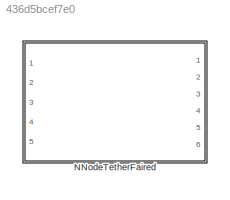
MODEL slx_436d5bcef7e0
KIND library
CONFIG AbsTol = auto
CONFIG EnableMultiTasking = off
CONFIG FixedStep = auto
CONFIG MaxStep = auto
CONFIG MinStep = auto
CONFIG RelTol = 1e-3
CONFIG SampleTimeConstraint = Unconstrained
CONFIG Solver = VariableStepAuto
CONFIG SolverName = VariableStepAuto
CONFIG StartTime = 0.0
CONFIG StopTime = 10.0
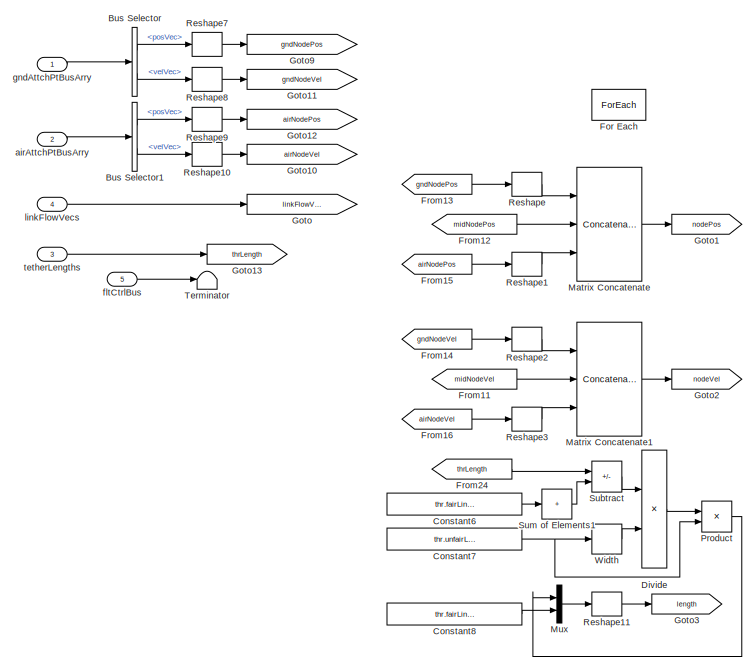
[diagram: NNodeTetherFaired - part 1/2, left side, full height]
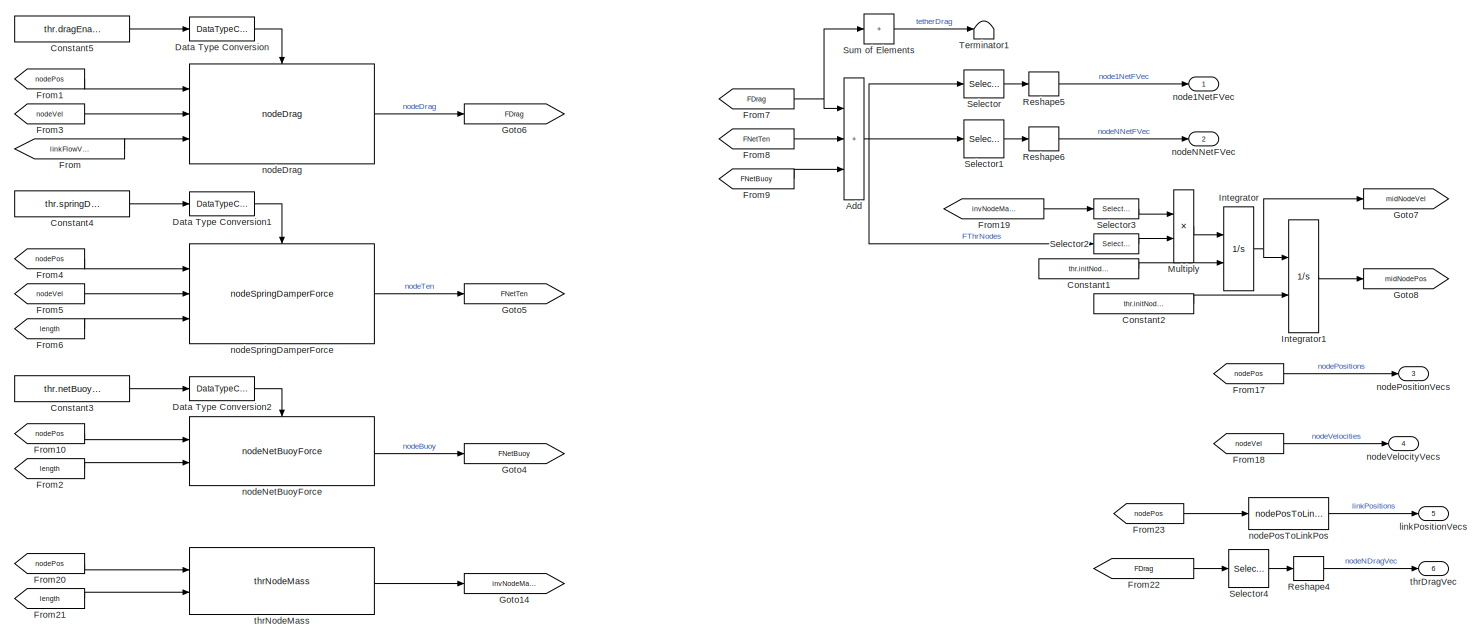
[diagram: NNodeTetherFaired - part 2/2, right side, full height]
BLOCK [SubSystem] NNodeTetherFaired
  Ports = [5, 6]
  RequestExecContextInheritance = off
  VariantControl = NNodeTether
BLOCK [Sum] NNodeTetherFaired/Add
  IconShape = rectangular
  Inputs = 3
  Ports = [3, 1]
BLOCK [BusSelector] NNodeTetherFaired/Bus Selector
  OutputSignals = posVec,velVec
  Ports = [1, 2]
BLOCK [BusSelector] NNodeTetherFaired/Bus Selector1
  OutputSignals = posVec,velVec
  Ports = [1, 2]
BLOCK [Constant] NNodeTetherFaired/Constant1
  Value = thr.initNodeVel
BLOCK [Constant] NNodeTetherFaired/Constant2
  Value = thr.initNodePos
BLOCK [Constant] NNodeTetherFaired/Constant3
  Value = thr.netBuoyEnable
BLOCK [Constant] NNodeTetherFaired/Constant4
  Value = thr.springDamperEnable
BLOCK [Constant] NNodeTetherFaired/Constant5
  Value = thr.dragEnable
BLOCK [Constant] NNodeTetherFaired/Constant6
  Value = thr.fairLinkLength
BLOCK [Constant] NNodeTetherFaired/Constant7
  Value = thr.unfairLinkLength
BLOCK [Constant] NNodeTetherFaired/Constant8
  Value = thr.fairLinkLength
BLOCK [DataTypeConversion] NNodeTetherFaired/Data Type Conversion
  OutDataTypeStr = boolean
  RndMeth = Floor
  SaturateOnIntegerOverflow = off
BLOCK [DataTypeConversion] NNodeTetherFaired/Data Type Conversion1
  OutDataTypeStr = boolean
  RndMeth = Floor
  SaturateOnIntegerOverflow = off
BLOCK [DataTypeConversion] NNodeTetherFaired/Data Type Conversion2
  OutDataTypeStr = boolean
  RndMeth = Floor
  SaturateOnIntegerOverflow = off
BLOCK [Product] NNodeTetherFaired/Divide
  Inputs = */
  Ports = [2, 1]
BLOCK [ForEach] NNodeTetherFaired/For Each
  DisableCoverage = on
  IterateSubsysMaskParameter = on,off,off
  Ports = []
  SubsysMaskParameterIterationDimension = 2,1,1
BLOCK [From] NNodeTetherFaired/From
  GotoTag = linkFlowVelVecs
BLOCK [From] NNodeTetherFaired/From1
  GotoTag = nodePos
BLOCK [From] NNodeTetherFaired/From10
  GotoTag = nodePos
BLOCK [From] NNodeTetherFaired/From11
  GotoTag = midNodeVel
BLOCK [From] NNodeTetherFaired/From12
  GotoTag = midNodePos
BLOCK [From] NNodeTetherFaired/From13
  GotoTag = gndNodePos
BLOCK [From] NNodeTetherFaired/From14
  GotoTag = gndNodeVel
BLOCK [From] NNodeTetherFaired/From15
  GotoTag = airNodePos
BLOCK [From] NNodeTetherFaired/From16
  GotoTag = airNodeVel
BLOCK [From] NNodeTetherFaired/From17
  GotoTag = nodePos
BLOCK [From] NNodeTetherFaired/From18
  GotoTag = nodeVel
BLOCK [From] NNodeTetherFaired/From19
  GotoTag = invNodeMasses
BLOCK [From] NNodeTetherFaired/From2
  GotoTag = length
BLOCK [From] NNodeTetherFaired/From20
  GotoTag = nodePos
BLOCK [From] NNodeTetherFaired/From21
  GotoTag = length
BLOCK [From] NNodeTetherFaired/From22
  GotoTag = FDrag
BLOCK [From] NNodeTetherFaired/From23
  GotoTag = nodePos
BLOCK [From] NNodeTetherFaired/From24
  GotoTag = thrLength
BLOCK [From] NNodeTetherFaired/From3
  GotoTag = nodeVel
BLOCK [From] NNodeTetherFaired/From4
  GotoTag = nodePos
BLOCK [From] NNodeTetherFaired/From5
  GotoTag = nodeVel
BLOCK [From] NNodeTetherFaired/From6
  GotoTag = length
BLOCK [From] NNodeTetherFaired/From7
  GotoTag = FDrag
BLOCK [From] NNodeTetherFaired/From8
  GotoTag = FNetTen
BLOCK [From] NNodeTetherFaired/From9
  GotoTag = FNetBuoy
BLOCK [Goto] NNodeTetherFaired/Goto
  GotoTag = linkFlowVelVecs
BLOCK [Goto] NNodeTetherFaired/Goto1
  GotoTag = nodePos
BLOCK [Goto] NNodeTetherFaired/Goto10
  GotoTag = airNodeVel
BLOCK [Goto] NNodeTetherFaired/Goto11
  GotoTag = gndNodeVel
BLOCK [Goto] NNodeTetherFaired/Goto12
  GotoTag = airNodePos
BLOCK [Goto] NNodeTetherFaired/Goto13
  GotoTag = thrLength
BLOCK [Goto] NNodeTetherFaired/Goto14
  GotoTag = invNodeMasses
BLOCK [Goto] NNodeTetherFaired/Goto2
  GotoTag = nodeVel
BLOCK [Goto] NNodeTetherFaired/Goto3
  GotoTag = length
BLOCK [Goto] NNodeTetherFaired/Goto4
  GotoTag = FNetBuoy
BLOCK [Goto] NNodeTetherFaired/Goto5
  GotoTag = FNetTen
BLOCK [Goto] NNodeTetherFaired/Goto6
  GotoTag = FDrag
BLOCK [Goto] NNodeTetherFaired/Goto7
  GotoTag = midNodeVel
BLOCK [Goto] NNodeTetherFaired/Goto8
  GotoTag = midNodePos
BLOCK [Goto] NNodeTetherFaired/Goto9
  GotoTag = gndNodePos
BLOCK [Integrator] NNodeTetherFaired/Integrator
  InitialConditionSource = external
  Ports = [2, 1]
BLOCK [Integrator] NNodeTetherFaired/Integrator1
  InitialConditionSource = external
  Ports = [2, 1]
BLOCK [Concatenate] NNodeTetherFaired/Matrix Concatenate
  ConcatenateDimension = 2
  Mode = Multidimensional array
  NumInputs = 3
  Ports = [3, 1]
BLOCK [Concatenate] NNodeTetherFaired/Matrix Concatenate1
  ConcatenateDimension = 2
  Mode = Multidimensional array
  NumInputs = 3
  Ports = [3, 1]
BLOCK [Product] NNodeTetherFaired/Multiply
  Ports = [2, 1]
BLOCK [Mux] NNodeTetherFaired/Mux
  DisplayOption = bar
  Inputs = 2
  Ports = [2, 1]
BLOCK [Product] NNodeTetherFaired/Product
  Ports = [2, 1]
BLOCK [Reshape] NNodeTetherFaired/Reshape
  OutputDimensionality = Column vector (2-D)
  Ports = [1, 1]
BLOCK [Reshape] NNodeTetherFaired/Reshape1
  OutputDimensionality = Column vector (2-D)
  Ports = [1, 1]
BLOCK [Reshape] NNodeTetherFaired/Reshape10
  OutputDimensionality = Column vector (2-D)
  Ports = [1, 1]
BLOCK [Reshape] NNodeTetherFaired/Reshape11
  OutputDimensionality = Row vector (2-D)
  Ports = [1, 1]
BLOCK [Reshape] NNodeTetherFaired/Reshape2
  OutputDimensionality = Column vector (2-D)
  Ports = [1, 1]
BLOCK [Reshape] NNodeTetherFaired/Reshape3
  OutputDimensionality = Column vector (2-D)
  Ports = [1, 1]
BLOCK [Reshape] NNodeTetherFaired/Reshape4
  OutputDimensionality = Column vector (2-D)
  Ports = [1, 1]
BLOCK [Reshape] NNodeTetherFaired/Reshape5
  OutputDimensionality = Column vector (2-D)
  Ports = [1, 1]
BLOCK [Reshape] NNodeTetherFaired/Reshape6
  OutputDimensionality = Column vector (2-D)
  Ports = [1, 1]
BLOCK [Reshape] NNodeTetherFaired/Reshape7
  OutputDimensionality = Column vector (2-D)
  Ports = [1, 1]
BLOCK [Reshape] NNodeTetherFaired/Reshape8
  OutputDimensionality = Column vector (2-D)
  Ports = [1, 1]
BLOCK [Reshape] NNodeTetherFaired/Reshape9
  OutputDimensionality = Column vector (2-D)
  Ports = [1, 1]
BLOCK [Selector] NNodeTetherFaired/Selector
  IndexOptions = Select all,Index vector (dialog)
  Indices = [1 3],1
  InputPortWidth = 3
  NumberOfDimensions = 2
  OutputSizes = 1,1
  Ports = [1, 1]
BLOCK [Selector] NNodeTetherFaired/Selector1
  IndexOptions = Select all,Starting index (dialog)
  Indices = [1 3],numNodes
  InputPortWidth = 3
  NumberOfDimensions = 2
  OutputSizes = 1,1
  Ports = [1, 1]
BLOCK [Selector] NNodeTetherFaired/Selector2
  IndexOptions = Select all,Index vector (dialog)
  Indices = [1 3],2:numNodes-1
  InputPortWidth = 3
  NumberOfDimensions = 2
  OutputSizes = 1,1
  Ports = [1, 1]
BLOCK [Selector] NNodeTetherFaired/Selector3
  IndexOptions = Select all,Index vector (dialog)
  Indices = [1 3],2:numNodes-1
  InputPortWidth = 3
  NumberOfDimensions = 2
  OutputSizes = 1,1
  Ports = [1, 1]
BLOCK [Selector] NNodeTetherFaired/Selector4
  IndexOptions = Select all,Starting index (dialog)
  Indices = [1 3],numNodes
  InputPortWidth = 3
  NumberOfDimensions = 2
  OutputSizes = 1,1
  Ports = [1, 1]
BLOCK [Sum] NNodeTetherFaired/Subtract
  IconShape = rectangular
  Inputs = +-
  Ports = [2, 1]
BLOCK [Sum] NNodeTetherFaired/Sum of Elements
  CollapseDim = 2
  CollapseMode = Specified dimension
  IconShape = rectangular
  Inputs = +
  Ports = [1, 1]
BLOCK [Sum] NNodeTetherFaired/Sum of Elements1
  IconShape = rectangular
  Inputs = +
  Ports = [1, 1]
BLOCK [Terminator] NNodeTetherFaired/Terminator
BLOCK [Terminator] NNodeTetherFaired/Terminator1
BLOCK [Width] NNodeTetherFaired/Width
BLOCK [Inport] NNodeTetherFaired/airAttchPtBusArry
  OutDataTypeStr = Bus: thrAttachPtKinematicsBus
  Partition = on
  PartitionDimension = 1
  PartitionOffset = 0
  PartitionWidth = 1
  Port = 2
BLOCK [Inport] NNodeTetherFaired/fltCtrlBus
  Port = 5
BLOCK [Inport] NNodeTetherFaired/gndAttchPtBusArry
  OutDataTypeStr = Bus: thrAttachPtKinematicsBus
  Partition = on
  PartitionDimension = 1
  PartitionOffset = 0
  PartitionWidth = 1
BLOCK [Inport] NNodeTetherFaired/linkFlowVecs
  Partition = on
  PartitionDimension = 3
  PartitionOffset = 0
  PartitionWidth = 1
  Port = 4
BLOCK [Outport] NNodeTetherFaired/linkPositionVecs
  ConcatenationDimension = 3
  Port = 5
  VectorParamsAs1DForOutWhenUnconnected = off
BLOCK [Outport] NNodeTetherFaired/node1NetFVec
  ConcatenationDimension = 3
  VectorParamsAs1DForOutWhenUnconnected = off
BLOCK [Reference] NNodeTetherFaired/nodeDrag  REF=nodeDragForce_ul/nodeDrag
  Ports = [3, 1, 1]
  SourceBlock = nodeDragForce_ul/nodeDrag
BLOCK [Outport] NNodeTetherFaired/nodeNNetFVec
  ConcatenationDimension = 3
  Port = 2
  VectorParamsAs1DForOutWhenUnconnected = off
BLOCK [Reference] NNodeTetherFaired/nodeNetBuoyForce  REF=nodeNetBuoyForce_ul/nodeNetBuoyForce
  Ports = [2, 1, 1]
  SourceBlock = nodeNetBuoyForce_ul/nodeNetBuoyForce
BLOCK [Reference] NNodeTetherFaired/nodePosToLinkPos  REF=nodePosToLinkPos_ul/nodePosToLinkPos
  Ports = [1, 1]
  SourceBlock = nodePosToLinkPos_ul/nodePosToLinkPos
  SourceType = SubSystem
BLOCK [Outport] NNodeTetherFaired/nodePositionVecs
  ConcatenationDimension = 3
  Port = 3
  VectorParamsAs1DForOutWhenUnconnected = off
BLOCK [Reference] NNodeTetherFaired/nodeSpringDamperForce  REF=nodeSpringDamperForce_ul/nodeSpringDamperForce
  Ports = [3, 1, 1]
  SourceBlock = nodeSpringDamperForce_ul/nodeSpringDamperForce
BLOCK [Outport] NNodeTetherFaired/nodeVelocityVecs
  ConcatenationDimension = 3
  Port = 4
  VectorParamsAs1DForOutWhenUnconnected = off
BLOCK [Inport] NNodeTetherFaired/tetherLengths
  Partition = on
  PartitionDimension = 1
  PartitionOffset = 0
  PartitionWidth = 1
  Port = 3
BLOCK [Outport] NNodeTetherFaired/thrDragVec
  ConcatenationDimension = 3
  Port = 6
  VectorParamsAs1DForOutWhenUnconnected = off
BLOCK [Reference] NNodeTetherFaired/thrNodeMass  REF=thrNodeMass_ul/thrNodeMass
  Ports = [2, 1]
  SourceBlock = thrNodeMass_ul/thrNodeMass
NET NNodeTetherFaired/Add:1 -> NNodeTetherFaired/Selector1:1, NNodeTetherFaired/Selector2:1, NNodeTetherFaired/Selector:1
LINE NNodeTetherFaired/Bus Selector1:1 -> NNodeTetherFaired/Reshape9:1
LINE NNodeTetherFaired/Bus Selector1:2 -> NNodeTetherFaired/Reshape10:1
LINE NNodeTetherFaired/Bus Selector:1 -> NNodeTetherFaired/Reshape7:1
LINE NNodeTetherFaired/Bus Selector:2 -> NNodeTetherFaired/Reshape8:1
LINE NNodeTetherFaired/Constant1:1 -> NNodeTetherFaired/Integrator:2
LINE NNodeTetherFaired/Constant2:1 -> NNodeTetherFaired/Integrator1:2
LINE NNodeTetherFaired/Constant3:1 -> NNodeTetherFaired/Data Type Conversion2:1
LINE NNodeTetherFaired/Constant4:1 -> NNodeTetherFaired/Data Type Conversion1:1
LINE NNodeTetherFaired/Constant5:1 -> NNodeTetherFaired/Data Type Conversion:1
LINE NNodeTetherFaired/Constant6:1 -> NNodeTetherFaired/Sum of Elements1:1
NET NNodeTetherFaired/Constant7:1 -> NNodeTetherFaired/Product:2, NNodeTetherFaired/Width:1
LINE NNodeTetherFaired/Constant8:1 -> NNodeTetherFaired/Mux:2
LINE NNodeTetherFaired/Data Type Conversion1:1 -> NNodeTetherFaired/nodeSpringDamperForce:enable
LINE NNodeTetherFaired/Data Type Conversion2:1 -> NNodeTetherFaired/nodeNetBuoyForce:enable
LINE NNodeTetherFaired/Data Type Conversion:1 -> NNodeTetherFaired/nodeDrag:enable
LINE NNodeTetherFaired/Divide:1 -> NNodeTetherFaired/Product:1
LINE NNodeTetherFaired/From10:1 -> NNodeTetherFaired/nodeNetBuoyForce:1
LINE NNodeTetherFaired/From11:1 -> NNodeTetherFaired/Matrix Concatenate1:2
LINE NNodeTetherFaired/From12:1 -> NNodeTetherFaired/Matrix Concatenate:2
LINE NNodeTetherFaired/From13:1 -> NNodeTetherFaired/Reshape:1
LINE NNodeTetherFaired/From14:1 -> NNodeTetherFaired/Reshape2:1
LINE NNodeTetherFaired/From15:1 -> NNodeTetherFaired/Reshape1:1
LINE NNodeTetherFaired/From16:1 -> NNodeTetherFaired/Reshape3:1
LINE NNodeTetherFaired/From17:1 -> NNodeTetherFaired/nodePositionVecs:1
LINE NNodeTetherFaired/From18:1 -> NNodeTetherFaired/nodeVelocityVecs:1
LINE NNodeTetherFaired/From19:1 -> NNodeTetherFaired/Selector3:1
LINE NNodeTetherFaired/From1:1 -> NNodeTetherFaired/nodeDrag:1
LINE NNodeTetherFaired/From20:1 -> NNodeTetherFaired/thrNodeMass:1
LINE NNodeTetherFaired/From21:1 -> NNodeTetherFaired/thrNodeMass:2
LINE NNodeTetherFaired/From22:1 -> NNodeTetherFaired/Selector4:1
LINE NNodeTetherFaired/From23:1 -> NNodeTetherFaired/nodePosToLinkPos:1
LINE NNodeTetherFaired/From24:1 -> NNodeTetherFaired/Subtract:1
LINE NNodeTetherFaired/From2:1 -> NNodeTetherFaired/nodeNetBuoyForce:2
LINE NNodeTetherFaired/From3:1 -> NNodeTetherFaired/nodeDrag:2
LINE NNodeTetherFaired/From4:1 -> NNodeTetherFaired/nodeSpringDamperForce:1
LINE NNodeTetherFaired/From5:1 -> NNodeTetherFaired/nodeSpringDamperForce:2
LINE NNodeTetherFaired/From6:1 -> NNodeTetherFaired/nodeSpringDamperForce:3
NET NNodeTetherFaired/From7:1 -> NNodeTetherFaired/Add:1, NNodeTetherFaired/Sum of Elements:1
LINE NNodeTetherFaired/From8:1 -> NNodeTetherFaired/Add:2
LINE NNodeTetherFaired/From9:1 -> NNodeTetherFaired/Add:3
LINE NNodeTetherFaired/From:1 -> NNodeTetherFaired/nodeDrag:3
LINE NNodeTetherFaired/Integrator1:1 -> NNodeTetherFaired/Goto8:1
NET NNodeTetherFaired/Integrator:1 -> NNodeTetherFaired/Goto7:1, NNodeTetherFaired/Integrator1:1
LINE NNodeTetherFaired/Matrix Concatenate1:1 -> NNodeTetherFaired/Goto2:1
LINE NNodeTetherFaired/Matrix Concatenate:1 -> NNodeTetherFaired/Goto1:1
LINE NNodeTetherFaired/Multiply:1 -> NNodeTetherFaired/Integrator:1
LINE NNodeTetherFaired/Mux:1 -> NNodeTetherFaired/Reshape11:1
LINE NNodeTetherFaired/Product:1 -> NNodeTetherFaired/Mux:1
LINE NNodeTetherFaired/Reshape10:1 -> NNodeTetherFaired/Goto10:1
LINE NNodeTetherFaired/Reshape11:1 -> NNodeTetherFaired/Goto3:1
LINE NNodeTetherFaired/Reshape1:1 -> NNodeTetherFaired/Matrix Concatenate:3
LINE NNodeTetherFaired/Reshape2:1 -> NNodeTetherFaired/Matrix Concatenate1:1
LINE NNodeTetherFaired/Reshape3:1 -> NNodeTetherFaired/Matrix Concatenate1:3
LINE NNodeTetherFaired/Reshape4:1 -> NNodeTetherFaired/thrDragVec:1
LINE NNodeTetherFaired/Reshape5:1 -> NNodeTetherFaired/node1NetFVec:1
LINE NNodeTetherFaired/Reshape6:1 -> NNodeTetherFaired/nodeNNetFVec:1
LINE NNodeTetherFaired/Reshape7:1 -> NNodeTetherFaired/Goto9:1
LINE NNodeTetherFaired/Reshape8:1 -> NNodeTetherFaired/Goto11:1
LINE NNodeTetherFaired/Reshape9:1 -> NNodeTetherFaired/Goto12:1
LINE NNodeTetherFaired/Reshape:1 -> NNodeTetherFaired/Matrix Concatenate:1
LINE NNodeTetherFaired/Selector1:1 -> NNodeTetherFaired/Reshape6:1
LINE NNodeTetherFaired/Selector2:1 -> NNodeTetherFaired/Multiply:2
LINE NNodeTetherFaired/Selector3:1 -> NNodeTetherFaired/Multiply:1
LINE NNodeTetherFaired/Selector4:1 -> NNodeTetherFaired/Reshape4:1
LINE NNodeTetherFaired/Selector:1 -> NNodeTetherFaired/Reshape5:1
LINE NNodeTetherFaired/Subtract:1 -> NNodeTetherFaired/Divide:1
LINE NNodeTetherFaired/Sum of Elements1:1 -> NNodeTetherFaired/Subtract:2
LINE NNodeTetherFaired/Sum of Elements:1 -> NNodeTetherFaired/Terminator1:1
LINE NNodeTetherFaired/Width:1 -> NNodeTetherFaired/Divide:2
LINE NNodeTetherFaired/airAttchPtBusArry:1 -> NNodeTetherFaired/Bus Selector1:1
LINE NNodeTetherFaired/fltCtrlBus:1 -> NNodeTetherFaired/Terminator:1
LINE NNodeTetherFaired/gndAttchPtBusArry:1 -> NNodeTetherFaired/Bus Selector:1
LINE NNodeTetherFaired/linkFlowVecs:1 -> NNodeTetherFaired/Goto:1
LINE NNodeTetherFaired/nodeDrag:1 -> NNodeTetherFaired/Goto6:1
LINE NNodeTetherFaired/nodeNetBuoyForce:1 -> NNodeTetherFaired/Goto4:1
LINE NNodeTetherFaired/nodePosToLinkPos:1 -> NNodeTetherFaired/linkPositionVecs:1
LINE NNodeTetherFaired/nodeSpringDamperForce:1 -> NNodeTetherFaired/Goto5:1
LINE NNodeTetherFaired/tetherLengths:1 -> NNodeTetherFaired/Goto13:1
LINE NNodeTetherFaired/thrNodeMass:1 -> NNodeTetherFaired/Goto14:1
note: NET lines group one-source signal fan-out (src -> all destinations, sorted); 1:1 wires keep LINE
